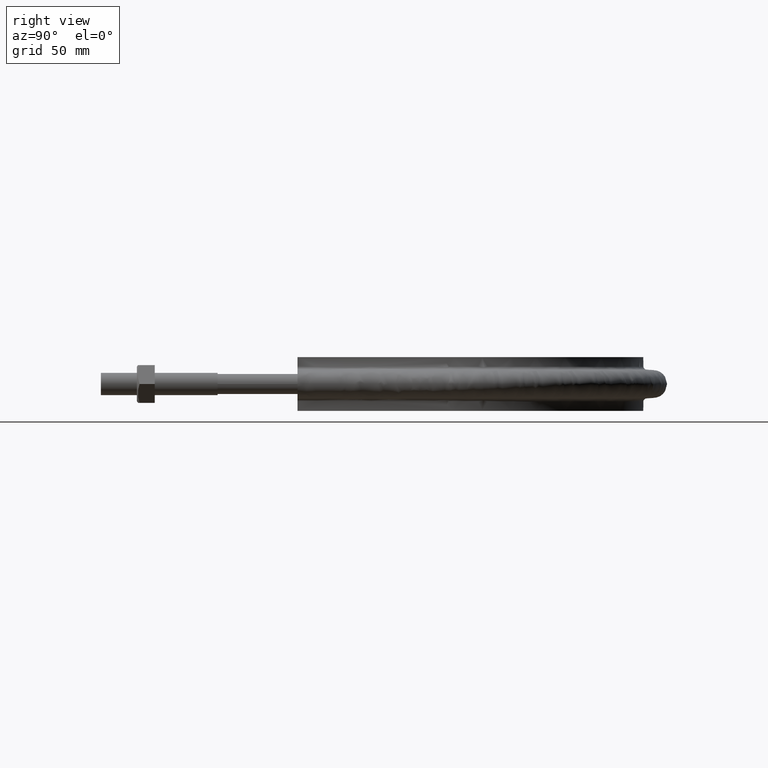
[diagram: clean part render]
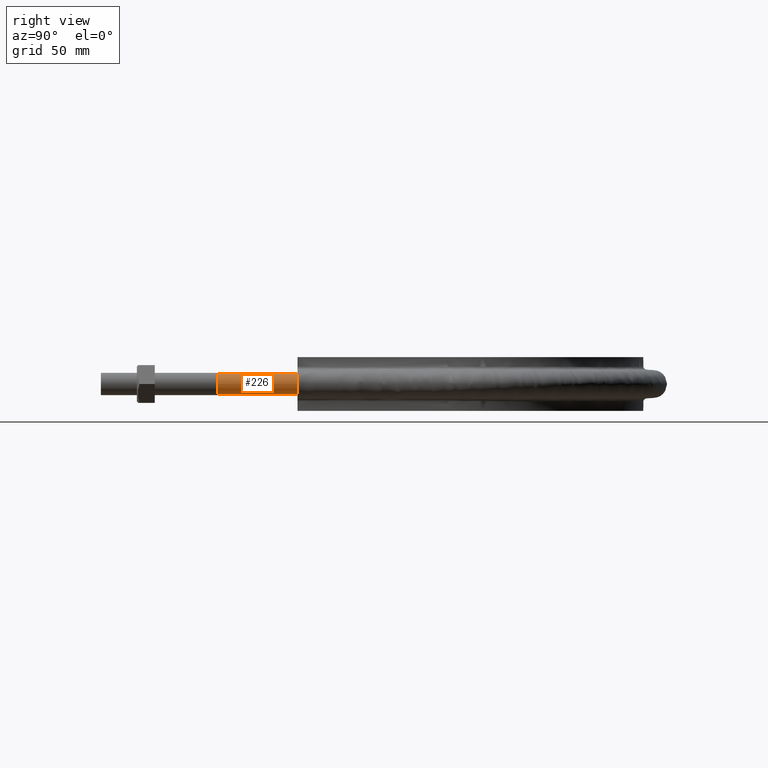
[diagram: same view with one face highlighted and labeled with its STEP entity id]
A machine part, right view. The second image highlights one B-rep face of the part: STEP entity #226.
In plain terms, the highlighted cylindrical surface (bore or boss wall) has radius 5.6 mm, axis along (0, 1, -0).
Its self-contained STEP definition (entity closure, byte-faithful):
#226 = ADVANCED_FACE( '', ( #277, #278 ), #279, .T. );
#277 = FACE_OUTER_BOUND( '', #1092, .T. );
#278 = FACE_OUTER_BOUND( '', #1093, .T. );
#279 = CYLINDRICAL_SURFACE( '', #1094, 5.59999999999999 );
#1092 = EDGE_LOOP( '', ( #1421, #1422, #1423, #1424, #1425, #1426, #1427, #1428 ) );
#1093 = EDGE_LOOP( '', ( #1429 ) );
#1094 = AXIS2_PLACEMENT_3D( '', #1430, #1431, #1432 );
#1421 = ORIENTED_EDGE( '', *, *, #1667, .F. );
#1422 = ORIENTED_EDGE( '', *, *, #1668, .F. );
#1423 = ORIENTED_EDGE( '', *, *, #1669, .F. );
#1424 = ORIENTED_EDGE( '', *, *, #1670, .F. );
#1425 = ORIENTED_EDGE( '', *, *, #1671, .F. );
#1426 = ORIENTED_EDGE( '', *, *, #1672, .F. );
#1427 = ORIENTED_EDGE( '', *, *, #1673, .F. );
#1428 = ORIENTED_EDGE( '', *, *, #1674, .F. );
#1429 = ORIENTED_EDGE( '', *, *, #1675, .T. );
#1430 = CARTESIAN_POINT( '', ( 116.000000000000, 109.500000000000, -2.74005671667757E-014 ) );
#1431 = DIRECTION( '', ( 2.44921270764475E-016, 1.00000000000000, -3.06151588455594E-016 ) );
#1432 = DIRECTION( '', ( 1.00000000000000, -2.44921270764475E-016, -1.50944387002457E-047 ) );
#1667 = EDGE_CURVE( '', #1759, #1760, #1761, .T. );
#1668 = EDGE_CURVE( '', #1762, #1759, #1763, .T. );
#1669 = EDGE_CURVE( '', #1764, #1762, #1765, .T. );
#1670 = EDGE_CURVE( '', #1766, #1764, #1767, .T. );
#1671 = EDGE_CURVE( '', #1768, #1766, #1769, .T. );
#1672 = EDGE_CURVE( '', #1770, #1768, #1771, .T. );
#1673 = EDGE_CURVE( '', #1772, #1770, #1773, .T. );
#1674 = EDGE_CURVE( '', #1760, #1772, #1774, .T. );
#1675 = EDGE_CURVE( '', #1775, #1775, #1776, .F. );
#1759 = VERTEX_POINT( '', #2057 );
#1760 = VERTEX_POINT( '', #2058 );
#1761 = B_SPLINE_CURVE_WITH_KNOTS( '', 3, ( #2059, #2060, #2061, #2062 ), .UNSPECIFIED., .F., .F., ( 4, 4 ), ( 0.000000000000000, 1.00000000000000 ), .UNSPECIFIED. );
#1762 = VERTEX_POINT( '', #2063 );
#1763 = B_SPLINE_CURVE_WITH_KNOTS( '', 3, ( #2064, #2065, #2066, #2067 ), .UNSPECIFIED., .F., .F., ( 4, 4 ), ( 0.000000000000000, 1.00000000000000 ), .UNSPECIFIED. );
#1764 = VERTEX_POINT( '', #2068 );
#1765 = B_SPLINE_CURVE_WITH_KNOTS( '', 3, ( #2069, #2070, #2071, #2072 ), .UNSPECIFIED., .F., .F., ( 4, 4 ), ( 0.000000000000000, 1.00000000000000 ), .UNSPECIFIED. );
#1766 = VERTEX_POINT( '', #2073 );
#1767 = B_SPLINE_CURVE_WITH_KNOTS( '', 3, ( #2074, #2075, #2076, #2077 ), .UNSPECIFIED., .F., .F., ( 4, 4 ), ( 0.000000000000000, 1.00000000000000 ), .UNSPECIFIED. );
#1768 = VERTEX_POINT( '', #2078 );
#1769 = B_SPLINE_CURVE_WITH_KNOTS( '', 3, ( #2079, #2080, #2081, #2082 ), .UNSPECIFIED., .F., .F., ( 4, 4 ), ( 0.000000000000000, 1.00000000000000 ), .UNSPECIFIED. );
#1770 = VERTEX_POINT( '', #2083 );
#1771 = B_SPLINE_CURVE_WITH_KNOTS( '', 3, ( #2084, #2085, #2086, #2087 ), .UNSPECIFIED., .F., .F., ( 4, 4 ), ( 0.000000000000000, 1.00000000000000 ), .UNSPECIFIED. );
#1772 = VERTEX_POINT( '', #2088 );
#1773 = B_SPLINE_CURVE_WITH_KNOTS( '', 3, ( #2089, #2090, #2091, #2092 ), .UNSPECIFIED., .F., .F., ( 4, 4 ), ( 0.000000000000000, 1.00000000000000 ), .UNSPECIFIED. );
#1774 = B_SPLINE_CURVE_WITH_KNOTS( '', 3, ( #2093, #2094, #2095, #2096 ), .UNSPECIFIED., .F., .F., ( 4, 4 ), ( 0.000000000000000, 1.00000000000000 ), .UNSPECIFIED. );
#1775 = VERTEX_POINT( '', #2097 );
#1776 = CIRCLE( '', #2098, 5.59999999999999 );
#2057 = CARTESIAN_POINT( '', ( 119.959797974660, 109.500000000000, 3.95979797462947 ) );
#2058 = CARTESIAN_POINT( '', ( 121.600000000000, 109.500000000000, -2.74005671667757E-014 ) );
#2059 = CARTESIAN_POINT( '', ( 119.959797974660, 109.500000000000, 3.95979797462948 ) );
#2060 = CARTESIAN_POINT( '', ( 120.994112549706, 109.500000000000, 2.92548339957532 ) );
#2061 = CARTESIAN_POINT( '', ( 121.600000000007, 109.500000000000, 1.46274169977412 ) );
#2062 = CARTESIAN_POINT( '', ( 121.600000000000, 109.500000000000, -2.58931158764550E-011 ) );
#2063 = CARTESIAN_POINT( '', ( 116.000000000000, 109.500000000000, 5.59999999999997 ) );
#2064 = CARTESIAN_POINT( '', ( 116.000000000000, 109.500000000000, 5.59999999999999 ) );
#2065 = CARTESIAN_POINT( '', ( 117.462741699804, 109.500000000000, 5.59999999999999 ) );
#2066 = CARTESIAN_POINT( '', ( 118.925483399608, 109.500000000000, 4.99411254968949 ) );
#2067 = CARTESIAN_POINT( '', ( 119.959797974660, 109.500000000000, 3.95979797462948 ) );
#2068 = CARTESIAN_POINT( '', ( 112.040202025355, 109.500000000000, 3.95979797464414 ) );
#2069 = CARTESIAN_POINT( '', ( 112.040202025379, 109.500000000000, 3.95979797466803 ) );
#2070 = CARTESIAN_POINT( '', ( 113.074516600428, 109.500000000000, 4.99411254970454 ) );
#2071 = CARTESIAN_POINT( '', ( 114.537258300220, 109.500000000000, 5.60000000000227 ) );
#2072 = CARTESIAN_POINT( '', ( 116.000000000012, 109.500000000000, 5.59999999999961 ) );
#2073 = CARTESIAN_POINT( '', ( 110.400000000000, 109.500000000000, -6.97890139867719E-014 ) );
#2074 = CARTESIAN_POINT( '', ( 110.400000000000, 109.500000000000, 3.25260651745651E-016 ) );
#2075 = CARTESIAN_POINT( '', ( 110.400000000000, 109.500000000000, 1.46274169980796 ) );
#2076 = CARTESIAN_POINT( '', ( 111.005887450314, 109.500000000000, 2.92548339961592 ) );
#2077 = CARTESIAN_POINT( '', ( 112.040202025379, 109.500000000000, 3.95979797466802 ) );
#2078 = CARTESIAN_POINT( '', ( 112.040202025362, 109.500000000000, -3.95979797465115 ) );
#2079 = CARTESIAN_POINT( '', ( 112.040202025362, 109.500000000000, -3.95979797465113 ) );
#2080 = CARTESIAN_POINT( '', ( 111.005887450307, 109.500000000000, -2.92548339960000 ) );
#2081 = CARTESIAN_POINT( '', ( 110.400000000001, 109.500000000000, -1.46274169980153 ) );
#2082 = CARTESIAN_POINT( '', ( 110.400000000000, 109.500000000000, -3.30714188673253E-012 ) );
#2083 = CARTESIAN_POINT( '', ( 116.000000000000, 109.500000000000, -5.60000000000002 ) );
#2084 = CARTESIAN_POINT( '', ( 116.000000000000, 109.500000000000, -5.59999999999999 ) );
#2085 = CARTESIAN_POINT( '', ( 114.537258300206, 109.500000000000, -5.59999999999990 ) );
#2086 = CARTESIAN_POINT( '', ( 113.074516600412, 109.500000000000, -4.99411254969785 ) );
#2087 = CARTESIAN_POINT( '', ( 112.040202025362, 109.500000000000, -3.95979797465105 ) );
#2088 = CARTESIAN_POINT( '', ( 119.959797974646, 109.500000000000, -3.95979797464350 ) );
#2089 = CARTESIAN_POINT( '', ( 119.959797974646, 109.500000000000, -3.95979797464348 ) );
#2090 = CARTESIAN_POINT( '', ( 118.925483399595, 109.500000000000, -4.99411254969504 ) );
#2091 = CARTESIAN_POINT( '', ( 117.462741699798, 109.500000000000, -5.59999999999997 ) );
#2092 = CARTESIAN_POINT( '', ( 116.000000000000, 109.500000000000, -5.60000000000001 ) );
#2093 = CARTESIAN_POINT( '', ( 121.600000000000, 109.500000000000, -1.81424798060202E-011 ) );
#2094 = CARTESIAN_POINT( '', ( 121.599999999995, 109.500000000000, -1.46274169980849 ) );
#2095 = CARTESIAN_POINT( '', ( 120.994112549690, 109.500000000000, -2.92548339960009 ) );
#2096 = CARTESIAN_POINT( '', ( 119.959797974641, 109.500000000000, -3.95979797464796 ) );
#2097 = CARTESIAN_POINT( '', ( 121.600000000000, 65.0000000000000, -1.37768214805017E-014 ) );
#2098 = AXIS2_PLACEMENT_3D( '', #2391, #2392, #2393 );
#2391 = CARTESIAN_POINT( '', ( 116.000000000000, 65.0000000000000, -1.37768214805017E-014 ) );
#2392 = DIRECTION( '', ( -1.83690953073357E-016, -1.00000000000000, 0.000000000000000 ) );
#2393 = DIRECTION( '', ( 1.00000000000000, -1.83690953073357E-016, 0.000000000000000 ) );